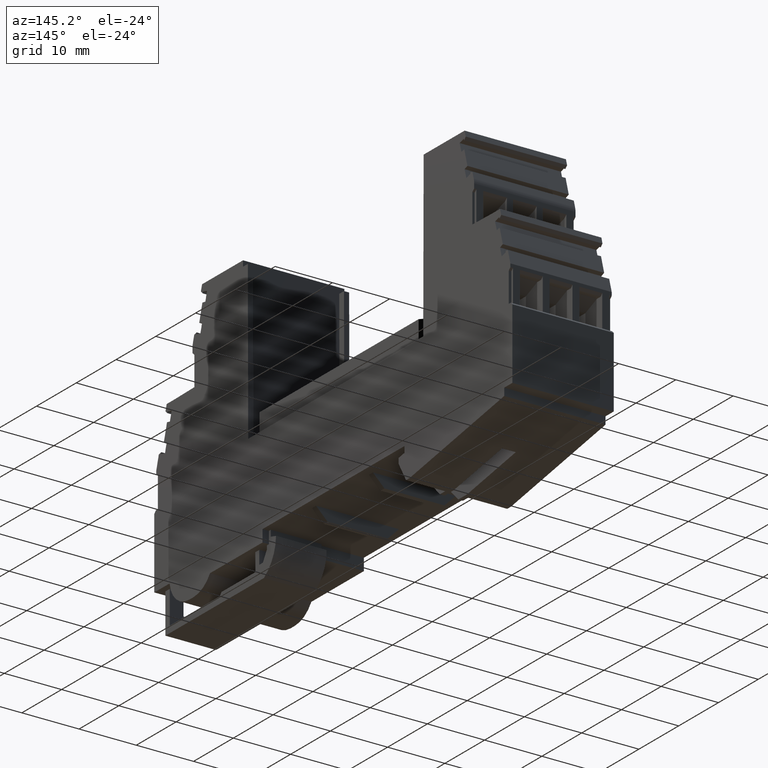
[diagram: clean part render]
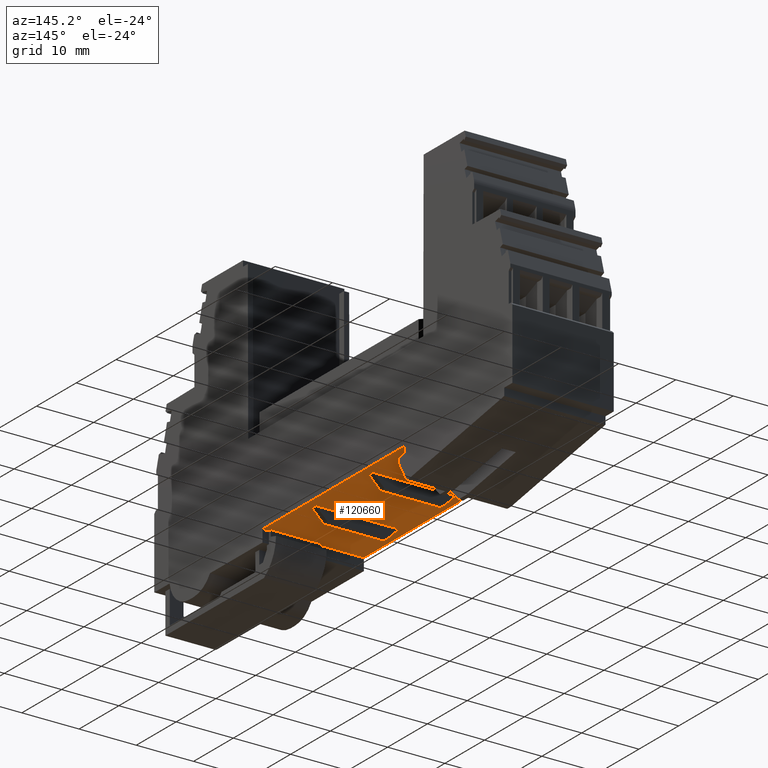
[diagram: same view with one face highlighted and labeled with its STEP entity id]
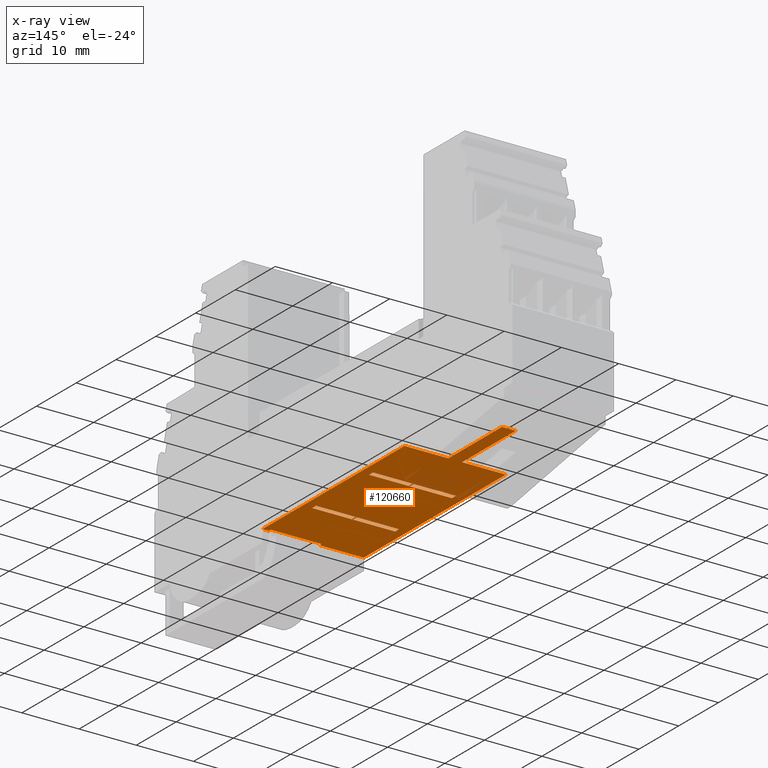
[diagram: x-ray of the same camera — body ghosted, the highlighted face saturated]
A machine part, auxiliary view. The second image highlights one B-rep face of the part: STEP entity #120660.
The next image is the same camera in x-ray: the body ghosted, the highlighted face saturated — about 9% of this face is hidden behind the body in this view.
In plain terms, the highlighted planar face has unit normal (-0, 0, 1).
Its self-contained STEP definition (entity closure, byte-faithful):
#5970=CARTESIAN_POINT('',(87.2413513671894,17.056274052443,-37.3));
#5980=VERTEX_POINT('',#5970);
#6010=CARTESIAN_POINT('',(8.90000005327397,17.056274052443,-37.3));
#6020=DIRECTION('',(-1.,1.20996962449382E-16,0.));
#6030=VECTOR('',#6020,1.);
#6040=LINE('',#6010,#6030);
#6050=CARTESIAN_POINT('',(51.5413513671885,17.0562740524429,-37.3));
#6060=VERTEX_POINT('',#6050);
#6070=EDGE_CURVE('',#5980,#6060,#6040,.T.);
#14910=CARTESIAN_POINT('',(51.5413513671885,17.056274052443,-55.));
#14920=VERTEX_POINT('',#14910);
#14950=CARTESIAN_POINT('',(8.90000005327397,17.056274052443,-55.));
#14960=DIRECTION('',(1.,-1.20996962449382E-16,-8.99708997865547E-21));
#14970=VECTOR('',#14960,1.);
#14980=LINE('',#14950,#14970);
#14990=CARTESIAN_POINT('',(87.2413513671894,17.056274052443,-55.));
#15000=VERTEX_POINT('',#14990);
#15010=EDGE_CURVE('',#14920,#15000,#14980,.T.);
#111710=CARTESIAN_POINT('',(100.741351367189,17.0562740524429,-44.95));
#111720=VERTEX_POINT('',#111710);
#111750=CARTESIAN_POINT('',(8.90000005327397,17.056274052443,-44.95));
#111760=DIRECTION('',(-1.,1.20996962449382E-16,8.99708997865547E-21));
#111770=VECTOR('',#111760,1.);
#111780=LINE('',#111750,#111770);
#111790=CARTESIAN_POINT('',(87.2413513671894,17.056274052443,-44.95));
#111800=VERTEX_POINT('',#111790);
#111810=EDGE_CURVE('',#111720,#111800,#111780,.T.);
#113710=CARTESIAN_POINT('',(100.741351367189,17.0562740524429,
-47.3500000000001));
#113720=VERTEX_POINT('',#113710);
#113750=CARTESIAN_POINT('',(100.741351367189,17.0562740524429,
-3.74999999990759));
#113760=DIRECTION('',(8.99708997865547E-21,7.51478429024852E-19,1.));
#113770=VECTOR('',#113760,1.);
#113780=LINE('',#113750,#113770);
#113790=EDGE_CURVE('',#113720,#111720,#113780,.T.);
#115520=CARTESIAN_POINT('',(87.2413513671894,17.056274052443,
-3.74999999990759));
#115530=DIRECTION('',(-1.22464679914735E-16,-7.51478429024816E-19,-1.));
#115540=VECTOR('',#115530,1.);
#115550=LINE('',#115520,#115540);
#115560=EDGE_CURVE('',#5980,#111800,#115550,.T.);
#117010=CARTESIAN_POINT('',(51.5413513671885,17.056274052443,
-38.4000000000001));
#117020=VERTEX_POINT('',#117010);
#117050=CARTESIAN_POINT('',(8.90000005327397,17.056274052443,
-38.4000000000001));
#117060=DIRECTION('',(1.,-1.20996962449382E-16,1.2245793180029E-16));
#117070=VECTOR('',#117060,1.);
#117080=LINE('',#117050,#117070);
#117090=CARTESIAN_POINT('',(52.0413513671893,17.056274052443,
-38.4000000000001));
#117100=VERTEX_POINT('',#117090);
#117110=EDGE_CURVE('',#117020,#117100,#117080,.T.);
#118010=CARTESIAN_POINT('',(52.0413513671893,17.056274052443,
-47.2500000000001));
#118020=VERTEX_POINT('',#118010);
#118050=CARTESIAN_POINT('',(138.682702681105,17.0562740524429,
-47.2500000000001));
#118060=DIRECTION('',(-1.,1.20996962449382E-16,8.99708997865547E-21));
#118070=VECTOR('',#118060,1.);
#118080=LINE('',#118050,#118070);
#118090=CARTESIAN_POINT('',(51.5413513671885,17.056274052443,
-47.2500000000001));
#118100=VERTEX_POINT('',#118090);
#118110=EDGE_CURVE('',#118020,#118100,#118080,.T.);
#119520=CARTESIAN_POINT('',(51.7413513671893,17.056274052443,-55.));
#119530=DIRECTION('',(1.20996962449382E-16,1.,-7.51478429024852E-19));
#119540=DIRECTION('',(8.99708997865547E-21,7.51478429024852E-19,1.));
#119550=AXIS2_PLACEMENT_3D('',#119520,#119530,#119540);
#119560=PLANE('',#119550);
#119570=CARTESIAN_POINT('',(8.90000005327397,17.056274052443,
-38.8999999999999));
#119580=DIRECTION('',(-1.,1.20996962449382E-16,8.99708997868013E-21));
#119590=VECTOR('',#119580,1.);
#119600=LINE('',#119570,#119590);
#119610=CARTESIAN_POINT('',(76.9913513671894,17.0562740524429,-38.9));
#119620=VERTEX_POINT('',#119610);
#119630=CARTESIAN_POINT('',(75.9913513671894,17.0562740524429,-38.9));
#119640=VERTEX_POINT('',#119630);
#119650=EDGE_CURVE('',#119620,#119640,#119600,.T.);
#119660=ORIENTED_EDGE('',*,*,#119650,.F.);
#119670=CARTESIAN_POINT('',(75.9913513671894,17.056274052443,
-3.74999999990759));
#119680=DIRECTION('',(8.99708997865547E-21,7.51478429024852E-19,1.));
#119690=VECTOR('',#119680,1.);
#119700=LINE('',#119670,#119690);
#119710=CARTESIAN_POINT('',(75.9913513671894,17.0562740524429,
-53.4000000000001));
#119720=VERTEX_POINT('',#119710);
#119730=EDGE_CURVE('',#119720,#119640,#119700,.T.);
#119740=ORIENTED_EDGE('',*,*,#119730,.T.);
#119750=CARTESIAN_POINT('',(8.90000005327397,17.056274052443,
-53.4000000000002));
#119760=DIRECTION('',(1.,-1.20996962449382E-16,-8.99708997863082E-21));
#119770=VECTOR('',#119760,1.);
#119780=LINE('',#119750,#119770);
#119790=CARTESIAN_POINT('',(76.9913513671894,17.0562740524429,
-53.4000000000001));
#119800=VERTEX_POINT('',#119790);
#119810=EDGE_CURVE('',#119720,#119800,#119780,.T.);
#119820=ORIENTED_EDGE('',*,*,#119810,.F.);
#119830=CARTESIAN_POINT('',(76.9913513671894,17.056274052443,
-3.74999999990759));
#119840=DIRECTION('',(-8.99708997865547E-21,-7.51478429024852E-19,-1.));
#119850=VECTOR('',#119840,1.);
#119860=LINE('',#119830,#119850);
#119870=EDGE_CURVE('',#119620,#119800,#119860,.T.);
#119880=ORIENTED_EDGE('',*,*,#119870,.T.);
#119890=EDGE_LOOP('',(#119880,#119820,#119740,#119660));
#119900=FACE_BOUND('',#119890,.T.);
#119910=CARTESIAN_POINT('',(8.90000005327397,17.056274052443,
-38.8999999999999));
#119920=DIRECTION('',(-1.,1.20996962449382E-16,8.99708997868013E-21));
#119930=VECTOR('',#119920,1.);
#119940=LINE('',#119910,#119930);
#119950=CARTESIAN_POINT('',(62.6913513671894,17.0562740524429,-38.9));
#119960=VERTEX_POINT('',#119950);
#119970=CARTESIAN_POINT('',(61.6913513671894,17.0562740524429,-38.9));
#119980=VERTEX_POINT('',#119970);
#119990=EDGE_CURVE('',#119960,#119980,#119940,.T.);
#120000=ORIENTED_EDGE('',*,*,#119990,.F.);
#120010=CARTESIAN_POINT('',(61.6913513671894,17.056274052443,
-3.74999999990759));
#120020=DIRECTION('',(8.99708997865547E-21,7.51478429024852E-19,1.));
#120030=VECTOR('',#120020,1.);
#120040=LINE('',#120010,#120030);
#120050=CARTESIAN_POINT('',(61.6913513671894,17.0562740524429,
-53.4000000000001));
#120060=VERTEX_POINT('',#120050);
#120070=EDGE_CURVE('',#120060,#119980,#120040,.T.);
#120080=ORIENTED_EDGE('',*,*,#120070,.T.);
#120090=CARTESIAN_POINT('',(8.90000005327397,17.056274052443,
-53.4000000000002));
#120100=DIRECTION('',(1.,-1.20996962449382E-16,-8.99708997863082E-21));
#120110=VECTOR('',#120100,1.);
#120120=LINE('',#120090,#120110);
#120130=CARTESIAN_POINT('',(62.6913513671894,17.0562740524429,
-53.4000000000001));
#120140=VERTEX_POINT('',#120130);
#120150=EDGE_CURVE('',#120060,#120140,#120120,.T.);
#120160=ORIENTED_EDGE('',*,*,#120150,.F.);
#120170=CARTESIAN_POINT('',(62.6913513671894,17.056274052443,
-3.74999999990759));
#120180=DIRECTION('',(-8.99708997865547E-21,-7.51478429024852E-19,-1.));
#120190=VECTOR('',#120180,1.);
#120200=LINE('',#120170,#120190);
#120210=EDGE_CURVE('',#119960,#120140,#120200,.T.);
#120220=ORIENTED_EDGE('',*,*,#120210,.T.);
#120230=EDGE_LOOP('',(#120220,#120160,#120080,#120000));
#120240=FACE_BOUND('',#120230,.T.);
#120250=ORIENTED_EDGE('',*,*,#111810,.T.);
#120260=ORIENTED_EDGE('',*,*,#113790,.T.);
#120270=CARTESIAN_POINT('',(8.90000005327397,17.056274052443,
-47.3500000000001));
#120280=DIRECTION('',(1.,-1.20996962449382E-16,-8.99708997865547E-21));
#120290=VECTOR('',#120280,1.);
#120300=LINE('',#120270,#120290);
#120310=CARTESIAN_POINT('',(87.2413513671894,17.056274052443,
-47.3500000000001));
#120320=VERTEX_POINT('',#120310);
#120330=EDGE_CURVE('',#120320,#113720,#120300,.T.);
#120340=ORIENTED_EDGE('',*,*,#120330,.T.);
#120350=CARTESIAN_POINT('',(87.2413513671894,17.056274052443,
-3.74999999990759));
#120360=DIRECTION('',(-1.22464679914735E-16,-7.51478429024816E-19,-1.));
#120370=VECTOR('',#120360,1.);
#120380=LINE('',#120350,#120370);
#120390=EDGE_CURVE('',#120320,#15000,#120380,.T.);
#120400=ORIENTED_EDGE('',*,*,#120390,.F.);
#120410=ORIENTED_EDGE('',*,*,#15010,.T.);
#120420=CARTESIAN_POINT('',(51.5413513671885,17.056274052443,
-88.5500000000924));
#120430=DIRECTION('',(8.99708997865547E-21,-2.60974393670053E-32,1.));
#120440=VECTOR('',#120430,1.);
#120450=LINE('',#120420,#120440);
#120460=EDGE_CURVE('',#14920,#118100,#120450,.T.);
#120470=ORIENTED_EDGE('',*,*,#120460,.F.);
#120480=ORIENTED_EDGE('',*,*,#118110,.T.);
#120490=CARTESIAN_POINT('',(52.0413513671893,17.056274052443,
-3.74999999990759));
#120500=DIRECTION('',(-1.22464679914735E-16,-7.51478429024816E-19,-1.));
#120510=VECTOR('',#120500,1.);
#120520=LINE('',#120490,#120510);
#120530=EDGE_CURVE('',#117100,#118020,#120520,.T.);
#120540=ORIENTED_EDGE('',*,*,#120530,.T.);
#120550=ORIENTED_EDGE('',*,*,#117110,.T.);
#120560=CARTESIAN_POINT('',(51.5413513671885,17.056274052443,
-3.74999999990759));
#120570=DIRECTION('',(0.,-7.51478429024852E-19,-1.));
#120580=VECTOR('',#120570,1.);
#120590=LINE('',#120560,#120580);
#120600=EDGE_CURVE('',#6060,#117020,#120590,.T.);
#120610=ORIENTED_EDGE('',*,*,#120600,.T.);
#120620=ORIENTED_EDGE('',*,*,#6070,.T.);
#120630=ORIENTED_EDGE('',*,*,#115560,.F.);
#120640=EDGE_LOOP('',(#120630,#120620,#120610,#120550,#120540,#120480,
#120470,#120410,#120400,#120340,#120260,#120250));
#120650=FACE_OUTER_BOUND('',#120640,.T.);
#120660=ADVANCED_FACE('',(#119900,#120240,#120650),#119560,.F.);